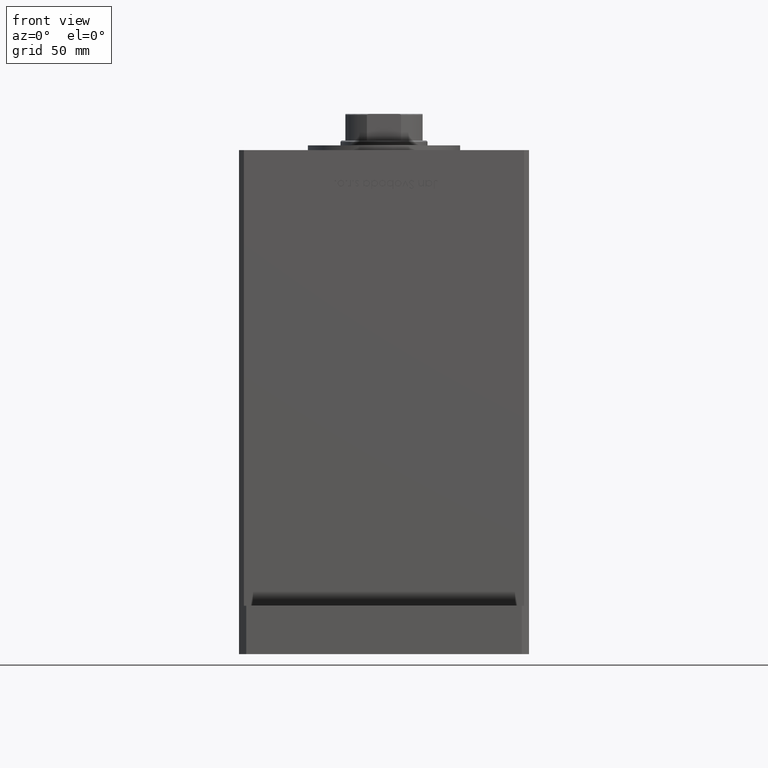
[diagram: clean part render]
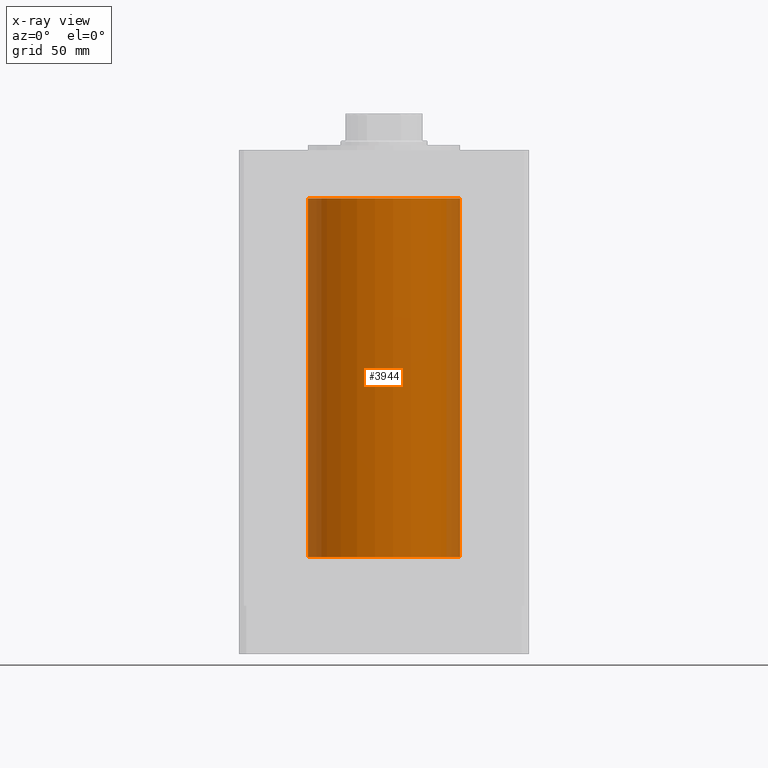
[diagram: x-ray — body ghosted, one internal face saturated and labeled with its STEP entity id]
A machine part, front view, then the same camera in x-ray: the body is ghosted and one INTERNAL B-rep face — a face not visible from any outside direction — is saturated and labeled: STEP entity #3944.
In plain terms, the highlighted cylindrical surface (partial cylindrical patch) has radius 31.5 mm, axis along (-0, -0, -1).
Its self-contained STEP definition (entity closure, byte-faithful):
#579 = EDGE_CURVE ( 'NONE', #19084, #43400, #38977, .T. ) ;
#1108 = CIRCLE ( 'NONE', #12325, 31.50000000000000000 ) ;
#3182 = DIRECTION ( 'NONE',  ( 1.000000000000000000, 0.000000000000000000, 0.000000000000000000 ) ) ;
#3944 = ADVANCED_FACE ( 'NONE', ( #20442 ), #49279, .F. ) ;
#6925 = CARTESIAN_POINT ( 'NONE',  ( 31.50000000000000000, 3.857637417314162689E-15, 148.5000000000000000 ) ) ;
#7506 = CARTESIAN_POINT ( 'NONE',  ( 0.000000000000000000, 0.000000000000000000, 0.000000000000000000 ) ) ;
#9848 = VERTEX_POINT ( 'NONE', #16520 ) ;
#12325 = AXIS2_PLACEMENT_3D ( 'NONE', #34694, #34425, #14207 ) ;
#12378 = EDGE_CURVE ( 'NONE', #43400, #9848, #27597, .T. ) ;
#12615 = DIRECTION ( 'NONE',  ( -1.000000000000000000, 0.000000000000000000, 0.000000000000000000 ) ) ;
#14207 = DIRECTION ( 'NONE',  ( 1.000000000000000000, 0.000000000000000000, 0.000000000000000000 ) ) ;
#15448 = EDGE_LOOP ( 'NONE', ( #36920, #40674, #22034, #47510 ) ) ;
#16520 = CARTESIAN_POINT ( 'NONE',  ( 31.50000000000000000, 3.857637417314162689E-15, 0.000000000000000000 ) ) ;
#16919 = CARTESIAN_POINT ( 'NONE',  ( 0.000000000000000000, 0.000000000000000000, 148.5000000000000000 ) ) ;
#19084 = VERTEX_POINT ( 'NONE', #49400 ) ;
#19358 = EDGE_CURVE ( 'NONE', #19084, #36400, #1108, .T. ) ;
#20442 = FACE_OUTER_BOUND ( 'NONE', #15448, .T. ) ;
#21308 = AXIS2_PLACEMENT_3D ( 'NONE', #16919, #49531, #12615 ) ;
#22034 = ORIENTED_EDGE ( 'NONE', *, *, #12378, .F. ) ;
#27391 = DIRECTION ( 'NONE',  ( -0.000000000000000000, -0.000000000000000000, -1.000000000000000000 ) ) ;
#27597 = CIRCLE ( 'NONE', #52555, 31.50000000000000000 ) ;
#28108 = CARTESIAN_POINT ( 'NONE',  ( 31.50000000000000000, 3.857637417314162689E-15, 148.5000000000000000 ) ) ;
#31603 = VECTOR ( 'NONE', #27391, 1000.000000000000000 ) ;
#34425 = DIRECTION ( 'NONE',  ( -0.000000000000000000, 0.000000000000000000, 1.000000000000000000 ) ) ;
#34694 = CARTESIAN_POINT ( 'NONE',  ( 0.000000000000000000, 0.000000000000000000, 148.5000000000000000 ) ) ;
#34815 = VECTOR ( 'NONE', #40757, 1000.000000000000000 ) ;
#36359 = DIRECTION ( 'NONE',  ( -0.000000000000000000, 0.000000000000000000, 1.000000000000000000 ) ) ;
#36400 = VERTEX_POINT ( 'NONE', #6925 ) ;
#36920 = ORIENTED_EDGE ( 'NONE', *, *, #19358, .T. ) ;
#38161 = EDGE_CURVE ( 'NONE', #36400, #9848, #39963, .T. ) ;
#38977 = LINE ( 'NONE', #43282, #31603 ) ;
#39963 = LINE ( 'NONE', #28108, #34815 ) ;
#40674 = ORIENTED_EDGE ( 'NONE', *, *, #38161, .T. ) ;
#40757 = DIRECTION ( 'NONE',  ( -0.000000000000000000, -0.000000000000000000, -1.000000000000000000 ) ) ;
#43282 = CARTESIAN_POINT ( 'NONE',  ( -31.50000000000000000, 0.000000000000000000, 148.5000000000000000 ) ) ;
#43400 = VERTEX_POINT ( 'NONE', #45258 ) ;
#45258 = CARTESIAN_POINT ( 'NONE',  ( -31.50000000000000000, 0.000000000000000000, 0.000000000000000000 ) ) ;
#47510 = ORIENTED_EDGE ( 'NONE', *, *, #579, .F. ) ;
#49279 = CYLINDRICAL_SURFACE ( 'NONE', #21308, 31.50000000000000000 ) ;
#49400 = CARTESIAN_POINT ( 'NONE',  ( -31.50000000000000000, 0.000000000000000000, 148.5000000000000000 ) ) ;
#49531 = DIRECTION ( 'NONE',  ( -0.000000000000000000, -0.000000000000000000, -1.000000000000000000 ) ) ;
#52555 = AXIS2_PLACEMENT_3D ( 'NONE', #7506, #36359, #3182 ) ;